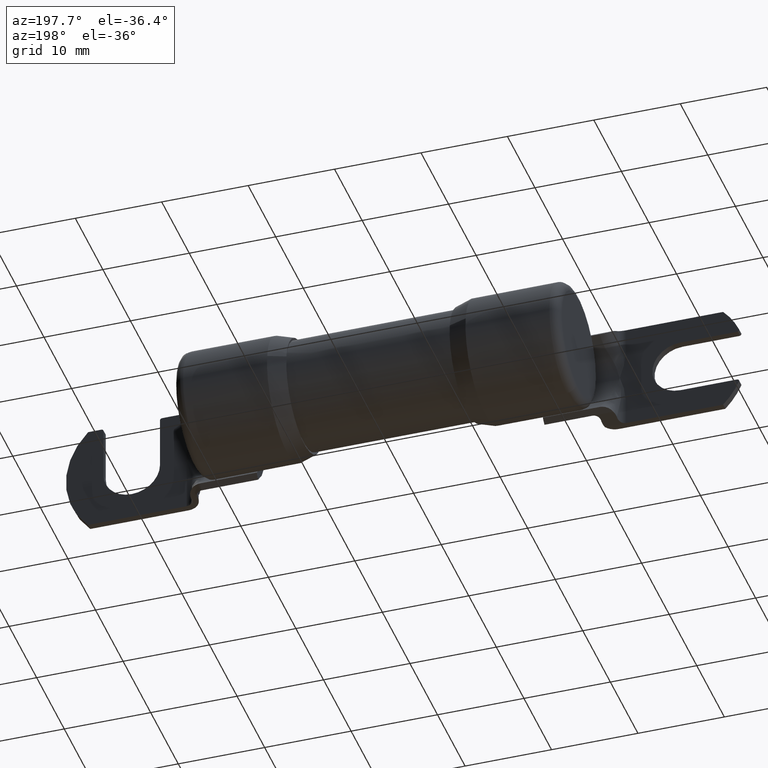
[diagram: clean part render]
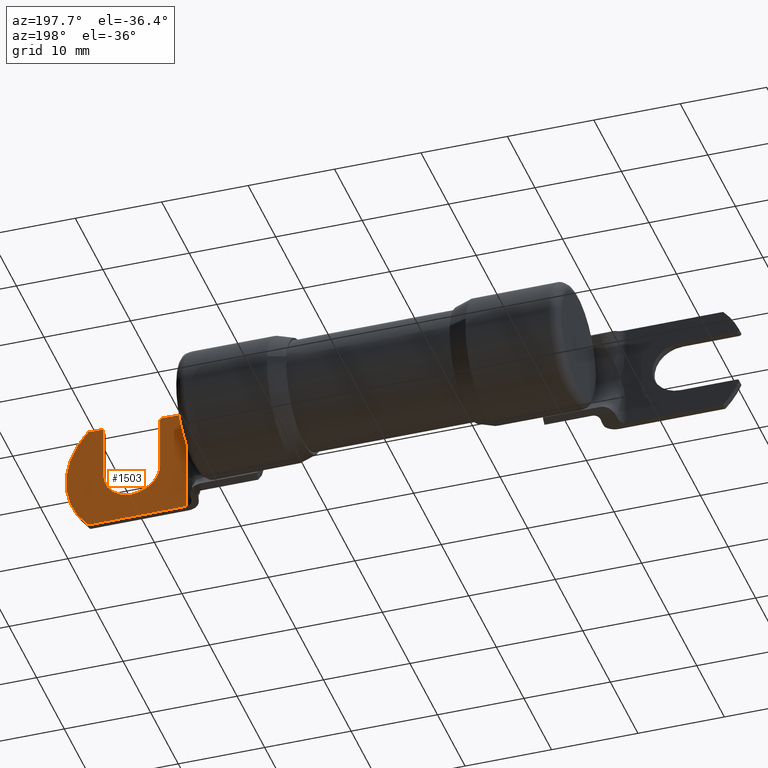
[diagram: same view with one face highlighted and labeled with its STEP entity id]
A machine part, auxiliary view. The second image highlights one B-rep face of the part: STEP entity #1503.
In plain terms, the highlighted planar face has unit normal (0, 1, -0).
Its self-contained STEP definition (entity closure, byte-faithful):
#44 = CARTESIAN_POINT ( 'NONE',  ( 1.249999999999998700, -0.2875000000000005900, -0.1285000000000004700 ) ) ;
#71 = CARTESIAN_POINT ( 'NONE',  ( 0.9069999999999992500, -0.2874999999999993100, 0.0001666667502526910700 ) ) ;
#114 = CARTESIAN_POINT ( 'NONE',  ( 0.9999999999999992200, -0.2875000000000007000, -0.08366666666666716700 ) ) ;
#131 = VERTEX_POINT ( 'NONE', #4716 ) ;
#175 = ORIENTED_EDGE ( 'NONE', *, *, #5698, .F. ) ;
#204 = LINE ( 'NONE', #4936, #4815 ) ;
#211 = AXIS2_PLACEMENT_3D ( 'NONE', #2050, #2990, #5763 ) ;
#238 = DIRECTION ( 'NONE',  ( 2.790838003475835500E-016, -2.058206189261720600E-016, -1.000000000000000000 ) ) ;
#243 = VERTEX_POINT ( 'NONE', #2468 ) ;
#291 = CARTESIAN_POINT ( 'NONE',  ( 0.9999999999999992200, -0.2875000000000006400, -0.2500000000000005600 ) ) ;
#294 = DIRECTION ( 'NONE',  ( -1.000000000000000000, -1.179611963664232000E-016, 3.349005604171012600E-016 ) ) ;
#295 = CIRCLE ( 'NONE', #2348, 0.1285000000000000000 ) ;
#332 = AXIS2_PLACEMENT_3D ( 'NONE', #2010, #3465, #5223 ) ;
#382 = CIRCLE ( 'NONE', #332, 0.1285000000000000000 ) ;
#399 = VERTEX_POINT ( 'NONE', #1724 ) ;
#458 = CARTESIAN_POINT ( 'NONE',  ( 1.249999999999998700, -0.2875000000000005300, -4.812176224042381000E-016 ) ) ;
#497 = CARTESIAN_POINT ( 'NONE',  ( 0.9069999999999999200, -0.2874997827936479100, 0.0004999999996766888600 ) ) ;
#515 = CARTESIAN_POINT ( 'NONE',  ( 1.111499999999999300, -0.2875000000000004800, 0.2399999999999994100 ) ) ;
#533 = ORIENTED_EDGE ( 'NONE', *, *, #1434, .F. ) ;
#556 = ORIENTED_EDGE ( 'NONE', *, *, #2682, .F. ) ;
#627 = CARTESIAN_POINT ( 'NONE',  ( 0.9999999999999992200, -0.2875000000000006400, 0.2499999999999994200 ) ) ;
#645 = PLANE ( 'NONE',  #211 ) ;
#702 = VERTEX_POINT ( 'NONE', #4091 ) ;
#745 = VECTOR ( 'NONE', #3710, 39.37007874015748100 ) ;
#871 = CARTESIAN_POINT ( 'NONE',  ( 1.378499999999998700, -0.2875000000000005300, -5.242523444178355000E-016 ) ) ;
#980 = DIRECTION ( 'NONE',  ( 0.0000000000000000000, 0.0000000000000000000, -1.000000000000000000 ) ) ;
#1003 = VERTEX_POINT ( 'NONE', #2092 ) ;
#1041 = B_SPLINE_CURVE_WITH_KNOTS ( 'NONE', 3,
 ( #1049, #3732, #5486, #2867 ),
 .UNSPECIFIED., .F., .F.,
 ( 4, 4 ),
 ( 0.0000000000000000000, 1.000000000000000000 ),
 .UNSPECIFIED. ) ;
#1049 = CARTESIAN_POINT ( 'NONE',  ( 0.9999999999999992200, -0.2875000000000007500, -0.0005000000000005780000 ) ) ;
#1152 = ORIENTED_EDGE ( 'NONE', *, *, #1479, .F. ) ;
#1194 = EDGE_CURVE ( 'NONE', #3207, #5737, #2268, .T. ) ;
#1279 = AXIS2_PLACEMENT_3D ( 'NONE', #2314, #1877, #4970 ) ;
#1370 = LINE ( 'NONE', #2463, #3745 ) ;
#1390 = CARTESIAN_POINT ( 'NONE',  ( 0.9690694965173135600, -0.2875000000000005300, -6.420603126180934300E-016 ) ) ;
#1429 = B_SPLINE_CURVE_WITH_KNOTS ( 'NONE', 3,
 ( #2275, #4108, #3209, #497 ),
 .UNSPECIFIED., .F., .F.,
 ( 4, 4 ),
 ( 0.0000000000000000000, 1.000000000000000000 ),
 .UNSPECIFIED. ) ;
#1434 = EDGE_CURVE ( 'NONE', #2857, #3828, #382, .T. ) ;
#1450 = CARTESIAN_POINT ( 'NONE',  ( 0.9999999999999992200, -0.2875000000000006400, -0.1668333333333339400 ) ) ;
#1474 = CARTESIAN_POINT ( 'NONE',  ( 1.121499999999999300, -0.2875000000000005300, -4.381829003906407400E-016 ) ) ;
#1479 = EDGE_CURVE ( 'NONE', #243, #4388, #4987, .T. ) ;
#1490 = ORIENTED_EDGE ( 'NONE', *, *, #5513, .T. ) ;
#1503 = ADVANCED_FACE ( 'NONE', ( #2709 ), #645, .T. ) ;
#1651 = CARTESIAN_POINT ( 'NONE',  ( 0.9691952126436645900, -0.2875000000000007000, -0.0005000000000005546900 ) ) ;
#1715 = CIRCLE ( 'NONE', #4678, 0.009999999999999995000 ) ;
#1724 = CARTESIAN_POINT ( 'NONE',  ( 1.449036676939770500, -0.2875000000000005900, -0.2500000000000010000 ) ) ;
#1840 = ORIENTED_EDGE ( 'NONE', *, *, #5713, .T. ) ;
#1853 = VECTOR ( 'NONE', #294, 39.37007874015748100 ) ;
#1863 = DIRECTION ( 'NONE',  ( -1.000000000000000000, -1.179611963664232000E-016, 3.349005604171012600E-016 ) ) ;
#1877 = DIRECTION ( 'NONE',  ( 1.873501354054948500E-016, 1.000000000000000000, -3.998185156605194800E-016 ) ) ;
#1994 = CARTESIAN_POINT ( 'NONE',  ( 0.9999999999999992200, -0.2875000000000007000, 0.08366666666666619500 ) ) ;
#2010 = CARTESIAN_POINT ( 'NONE',  ( 1.249999999999998700, -0.2875000000000005300, -4.812176224042381000E-016 ) ) ;
#2050 = CARTESIAN_POINT ( 'NONE',  ( 1.549999999999998500, -0.2875000000000004800, 0.2499999999999992200 ) ) ;
#2080 = EDGE_CURVE ( 'NONE', #2991, #2857, #3457, .T. ) ;
#2092 = CARTESIAN_POINT ( 'NONE',  ( 0.9999999999999992200, -0.2875000000000007500, -0.0005000000000005780000 ) ) ;
#2116 = CARTESIAN_POINT ( 'NONE',  ( 1.388499999999998500, -0.2875000000000004800, 0.2399999999999992100 ) ) ;
#2117 = B_SPLINE_CURVE_WITH_KNOTS ( 'NONE', 3,
 ( #3646, #114, #1450, #4549 ),
 .UNSPECIFIED., .F., .F.,
 ( 4, 4 ),
 ( 0.001999999999999889500, 1.000000000000000000 ),
 .UNSPECIFIED. ) ;
#2142 = ORIENTED_EDGE ( 'NONE', *, *, #3830, .F. ) ;
#2148 = VECTOR ( 'NONE', #238, 39.37007874015748100 ) ;
#2174 = VERTEX_POINT ( 'NONE', #291 ) ;
#2200 = CARTESIAN_POINT ( 'NONE',  ( 0.9999999999999992200, -0.2875000000000007000, 0.0004999999999994288500 ) ) ;
#2215 = CARTESIAN_POINT ( 'NONE',  ( 1.111499999999999300, -0.2875000000000004800, 0.2499999999999994200 ) ) ;
#2268 = B_SPLINE_CURVE_WITH_KNOTS ( 'NONE', 3,
 ( #5618, #5209, #4354, #3016 ),
 .UNSPECIFIED., .F., .F.,
 ( 4, 4 ),
 ( -2.413533222243079100E-005, -1.104203562601078300E-005 ),
 .UNSPECIFIED. ) ;
#2275 = CARTESIAN_POINT ( 'NONE',  ( 0.9691955338905539100, -0.2875000000000007000, 0.0004999999999994147600 ) ) ;
#2277 = CIRCLE ( 'NONE', #1279, 0.3600000000000000400 ) ;
#2299 = VERTEX_POINT ( 'NONE', #4421 ) ;
#2314 = CARTESIAN_POINT ( 'NONE',  ( 1.189999999999998600, -0.2875000000000005300, -5.562200077467377400E-016 ) ) ;
#2348 = AXIS2_PLACEMENT_3D ( 'NONE', #458, #4049, #4030 ) ;
#2379 = CARTESIAN_POINT ( 'NONE',  ( 0.9999999999999992200, -0.2875000000000007000, 0.0004999999999994288500 ) ) ;
#2463 = CARTESIAN_POINT ( 'NONE',  ( 0.9534999999999991300, -0.2875000000000005300, -5.555566550259407100E-016 ) ) ;
#2468 = CARTESIAN_POINT ( 'NONE',  ( 0.9999999999999992200, -0.2875000000000006400, 0.2499999999999994200 ) ) ;
#2564 = DIRECTION ( 'NONE',  ( 0.0000000000000000000, 0.0000000000000000000, -1.000000000000000000 ) ) ;
#2570 = LINE ( 'NONE', #4260, #4775 ) ;
#2583 = VERTEX_POINT ( 'NONE', #4512 ) ;
#2657 = CARTESIAN_POINT ( 'NONE',  ( 0.9794422981441303100, -0.2875115478569633100, 0.0005041306511942599600 ) ) ;
#2682 = EDGE_CURVE ( 'NONE', #3828, #5230, #295, .T. ) ;
#2709 = FACE_OUTER_BOUND ( 'NONE', #4952, .T. ) ;
#2793 = EDGE_CURVE ( 'NONE', #2583, #702, #1429, .T. ) ;
#2857 = VERTEX_POINT ( 'NONE', #871 ) ;
#2867 = CARTESIAN_POINT ( 'NONE',  ( 0.9691952126436645900, -0.2875000000000007000, -0.0005000000000005546900 ) ) ;
#2871 = ORIENTED_EDGE ( 'NONE', *, *, #4288, .T. ) ;
#2928 = EDGE_CURVE ( 'NONE', #5230, #5680, #4167, .T. ) ;
#2990 = DIRECTION ( 'NONE',  ( 1.873501354054947700E-016, 1.000000000000000000, -2.058206189261715200E-016 ) ) ;
#2991 = VERTEX_POINT ( 'NONE', #4596 ) ;
#3009 = ORIENTED_EDGE ( 'NONE', *, *, #3154, .F. ) ;
#3016 = CARTESIAN_POINT ( 'NONE',  ( 0.9691952126436645900, -0.2875000000000007000, -0.0005000000000005546900 ) ) ;
#3049 = LINE ( 'NONE', #3864, #1853 ) ;
#3101 = EDGE_CURVE ( 'NONE', #1003, #2174, #2117, .T. ) ;
#3139 = EDGE_CURVE ( 'NONE', #4303, #399, #2277, .T. ) ;
#3154 = EDGE_CURVE ( 'NONE', #702, #2299, #3909, .T. ) ;
#3207 = VERTEX_POINT ( 'NONE', #1390 ) ;
#3209 = CARTESIAN_POINT ( 'NONE',  ( 0.9277613343482302700, -0.2874558985197001600, 0.0004843475492560604900 ) ) ;
#3457 = LINE ( 'NONE', #5473, #2148 ) ;
#3465 = DIRECTION ( 'NONE',  ( 1.873501354054948500E-016, 1.000000000000000000, -3.998185156605194800E-016 ) ) ;
#3646 = CARTESIAN_POINT ( 'NONE',  ( 0.9999999999999992200, -0.2875000000000007500, -0.0005000000000005780000 ) ) ;
#3654 = DIRECTION ( 'NONE',  ( 1.873501354054948500E-016, 1.000000000000000000, -3.998185156605191800E-016 ) ) ;
#3665 = CARTESIAN_POINT ( 'NONE',  ( 0.9069999999999999200, -0.2875000000000007500, -5.862173051447488600E-016 ) ) ;
#3710 = DIRECTION ( 'NONE',  ( -2.790838003475835500E-016, 2.058206189261719600E-016, 1.000000000000000000 ) ) ;
#3732 = CARTESIAN_POINT ( 'NONE',  ( 0.9897318446301819300, -0.2875000000000004200, -0.0005000000000009432700 ) ) ;
#3745 = VECTOR ( 'NONE', #5548, 39.37007874015748100 ) ;
#3828 = VERTEX_POINT ( 'NONE', #44 ) ;
#3830 = EDGE_CURVE ( 'NONE', #4303, #131, #204, .T. ) ;
#3864 = CARTESIAN_POINT ( 'NONE',  ( 1.549999999999998500, -0.2875000000000004800, 0.2499999999999992200 ) ) ;
#3892 = ORIENTED_EDGE ( 'NONE', *, *, #3101, .F. ) ;
#3909 = B_SPLINE_CURVE_WITH_KNOTS ( 'NONE', 3,
 ( #4136, #5409, #71, #3665 ),
 .UNSPECIFIED., .F., .F.,
 ( 4, 4 ),
 ( 0.4989727331555710000, 0.5000000000000000000 ),
 .UNSPECIFIED. ) ;
#4030 = DIRECTION ( 'NONE',  ( 0.0000000000000000000, -2.657439682552785400E-016, -1.000000000000000000 ) ) ;
#4049 = DIRECTION ( 'NONE',  ( 1.873501354054948500E-016, 1.000000000000000000, -3.998185156605194800E-016 ) ) ;
#4091 = CARTESIAN_POINT ( 'NONE',  ( 0.9069999999999999200, -0.2874997827936479100, 0.0004999999996766888600 ) ) ;
#4104 = CARTESIAN_POINT ( 'NONE',  ( 1.449036676939771100, -0.2875000000000004800, 0.2499999999999991400 ) ) ;
#4108 = CARTESIAN_POINT ( 'NONE',  ( 0.9485066661000137700, -0.2874766841245524100, 0.0004917266980044762100 ) ) ;
#4131 = ORIENTED_EDGE ( 'NONE', *, *, #2793, .F. ) ;
#4136 = CARTESIAN_POINT ( 'NONE',  ( 0.9069999999999999200, -0.2874997827936479100, 0.0004999999996766888600 ) ) ;
#4167 = LINE ( 'NONE', #1474, #745 ) ;
#4260 = CARTESIAN_POINT ( 'NONE',  ( 1.549999999999998500, -0.2875000000000005900, -0.2500000000000010000 ) ) ;
#4274 = CIRCLE ( 'NONE', #4384, 0.009999999999999995000 ) ;
#4288 = EDGE_CURVE ( 'NONE', #5263, #5680, #4274, .T. ) ;
#4303 = VERTEX_POINT ( 'NONE', #4104 ) ;
#4309 = CARTESIAN_POINT ( 'NONE',  ( 1.121499999999999300, -0.2875000000000004800, 0.2399999999999994100 ) ) ;
#4354 = CARTESIAN_POINT ( 'NONE',  ( 0.9691530931036215200, -0.2875000000000004800, -0.0003333333333061244600 ) ) ;
#4382 = ORIENTED_EDGE ( 'NONE', *, *, #5456, .T. ) ;
#4384 = AXIS2_PLACEMENT_3D ( 'NONE', #515, #3654, #980 ) ;
#4388 = VERTEX_POINT ( 'NONE', #5442 ) ;
#4421 = CARTESIAN_POINT ( 'NONE',  ( 0.9069999999999999200, -0.2875000000000007500, -5.862173051447488600E-016 ) ) ;
#4485 = ORIENTED_EDGE ( 'NONE', *, *, #2080, .F. ) ;
#4512 = CARTESIAN_POINT ( 'NONE',  ( 0.9691955338905539100, -0.2875000000000007000, 0.0004999999999994147600 ) ) ;
#4549 = CARTESIAN_POINT ( 'NONE',  ( 0.9999999999999992200, -0.2875000000000006400, -0.2500000000000005600 ) ) ;
#4596 = CARTESIAN_POINT ( 'NONE',  ( 1.378499999999998700, -0.2875000000000004800, 0.2399999999999991600 ) ) ;
#4666 = EDGE_CURVE ( 'NONE', #4388, #2583, #5641, .T. ) ;
#4678 = AXIS2_PLACEMENT_3D ( 'NONE', #2116, #5190, #2564 ) ;
#4696 = DIRECTION ( 'NONE',  ( -1.000000000000000000, -1.179611963664232000E-016, 3.349005604171012600E-016 ) ) ;
#4716 = CARTESIAN_POINT ( 'NONE',  ( 1.388499999999998500, -0.2875000000000004800, 0.2499999999999992200 ) ) ;
#4764 = ORIENTED_EDGE ( 'NONE', *, *, #1194, .F. ) ;
#4775 = VECTOR ( 'NONE', #4696, 39.37007874015748100 ) ;
#4815 = VECTOR ( 'NONE', #1863, 39.37007874015748100 ) ;
#4834 = CARTESIAN_POINT ( 'NONE',  ( 1.121499999999999300, -0.2875000000000005300, -4.381829003906407400E-016 ) ) ;
#4877 = ORIENTED_EDGE ( 'NONE', *, *, #2928, .F. ) ;
#4913 = ORIENTED_EDGE ( 'NONE', *, *, #3139, .T. ) ;
#4936 = CARTESIAN_POINT ( 'NONE',  ( 1.549999999999998500, -0.2875000000000004800, 0.2499999999999992200 ) ) ;
#4952 = EDGE_LOOP ( 'NONE', ( #4485, #1840, #2142, #4913, #5332, #3892, #4382, #4764, #1490, #3009, #4131, #5556, #1152, #175, #2871, #4877, #556, #533 ) ) ;
#4970 = DIRECTION ( 'NONE',  ( 3.794233324533698400E-016, -1.897116662266849200E-016, -1.000000000000000000 ) ) ;
#4987 = B_SPLINE_CURVE_WITH_KNOTS ( 'NONE', 3,
 ( #627, #5567, #1994, #2379 ),
 .UNSPECIFIED., .F., .F.,
 ( 4, 4 ),
 ( 0.0000000000000000000, 0.9980000000000001100 ),
 .UNSPECIFIED. ) ;
#5190 = DIRECTION ( 'NONE',  ( 1.873501354054948500E-016, 1.000000000000000000, -3.998185156605191800E-016 ) ) ;
#5209 = CARTESIAN_POINT ( 'NONE',  ( 0.9691112948104675400, -0.2875000000000007000, -0.0001666666666116847600 ) ) ;
#5223 = DIRECTION ( 'NONE',  ( 0.0000000000000000000, -2.657439682552785400E-016, -1.000000000000000000 ) ) ;
#5230 = VERTEX_POINT ( 'NONE', #4834 ) ;
#5263 = VERTEX_POINT ( 'NONE', #2215 ) ;
#5271 = CARTESIAN_POINT ( 'NONE',  ( 0.9897175179337781600, -0.2875213719362074700, 0.0005076426479900779300 ) ) ;
#5332 = ORIENTED_EDGE ( 'NONE', *, *, #5566, .T. ) ;
#5409 = CARTESIAN_POINT ( 'NONE',  ( 0.9069999999999992500, -0.2874998550722811500, 0.0003333335005060443300 ) ) ;
#5442 = CARTESIAN_POINT ( 'NONE',  ( 0.9999999999999992200, -0.2875000000000007000, 0.0004999999999994288500 ) ) ;
#5456 = EDGE_CURVE ( 'NONE', #1003, #5737, #1041, .T. ) ;
#5473 = CARTESIAN_POINT ( 'NONE',  ( 1.378499999999998700, -0.2875000000000005300, -5.242523444178355000E-016 ) ) ;
#5486 = CARTESIAN_POINT ( 'NONE',  ( 0.9794636892603666400, -0.2875000000000004200, -0.0005000000000009460900 ) ) ;
#5513 = EDGE_CURVE ( 'NONE', #3207, #2299, #1370, .T. ) ;
#5548 = DIRECTION ( 'NONE',  ( -1.000000000000000000, -1.179611963664235000E-016, 5.555970130180814200E-015 ) ) ;
#5556 = ORIENTED_EDGE ( 'NONE', *, *, #4666, .F. ) ;
#5566 = EDGE_CURVE ( 'NONE', #399, #2174, #2570, .T. ) ;
#5567 = CARTESIAN_POINT ( 'NONE',  ( 0.9999999999999992200, -0.2875000000000006400, 0.1668333333333327800 ) ) ;
#5618 = CARTESIAN_POINT ( 'NONE',  ( 0.9690694965173135600, -0.2875000000000005300, -6.420603126180934300E-016 ) ) ;
#5641 = B_SPLINE_CURVE_WITH_KNOTS ( 'NONE', 3,
 ( #2200, #5271, #2657, #5720 ),
 .UNSPECIFIED., .F., .F.,
 ( 4, 4 ),
 ( 0.0000000000000000000, 1.000000000000000000 ),
 .UNSPECIFIED. ) ;
#5680 = VERTEX_POINT ( 'NONE', #4309 ) ;
#5698 = EDGE_CURVE ( 'NONE', #5263, #243, #3049, .T. ) ;
#5713 = EDGE_CURVE ( 'NONE', #2991, #131, #1715, .T. ) ;
#5720 = CARTESIAN_POINT ( 'NONE',  ( 0.9691955338905539100, -0.2875000000000007000, 0.0004999999999994147600 ) ) ;
#5737 = VERTEX_POINT ( 'NONE', #1651 ) ;
#5763 = DIRECTION ( 'NONE',  ( 2.790838003475835500E-016, -2.058206189261715700E-016, -1.000000000000000000 ) ) ;